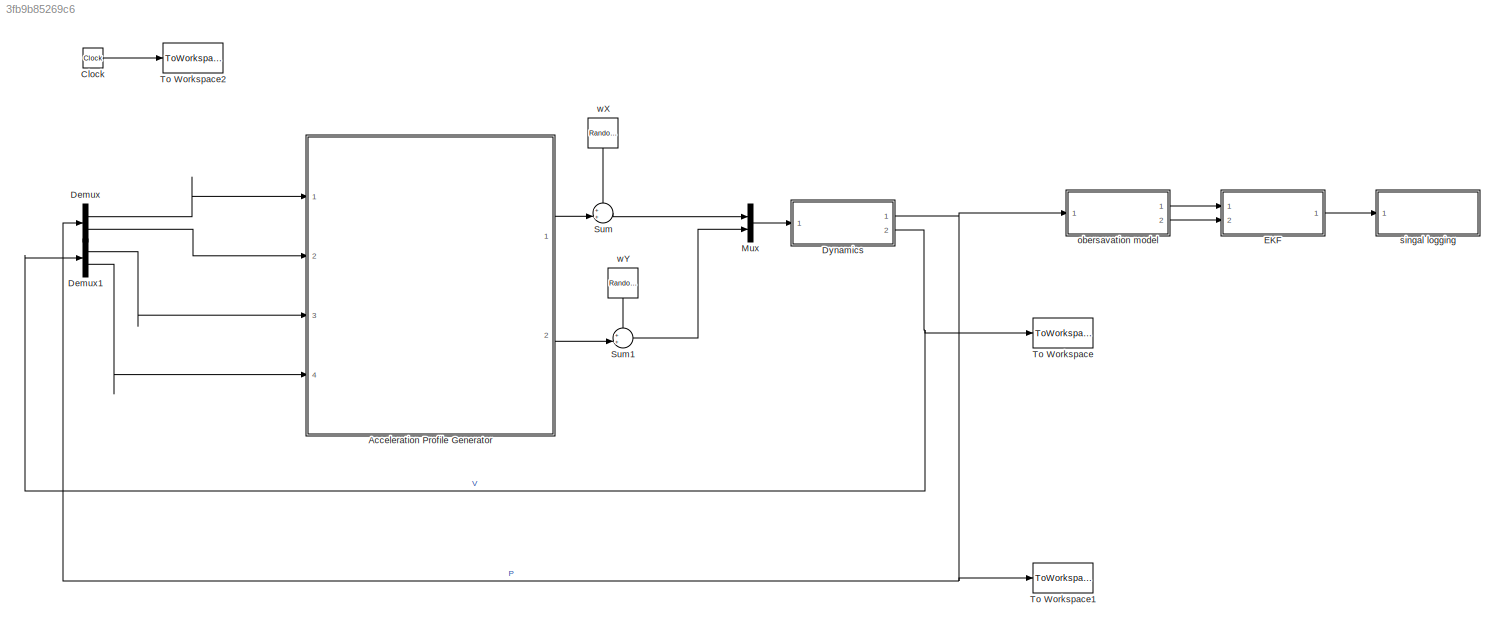
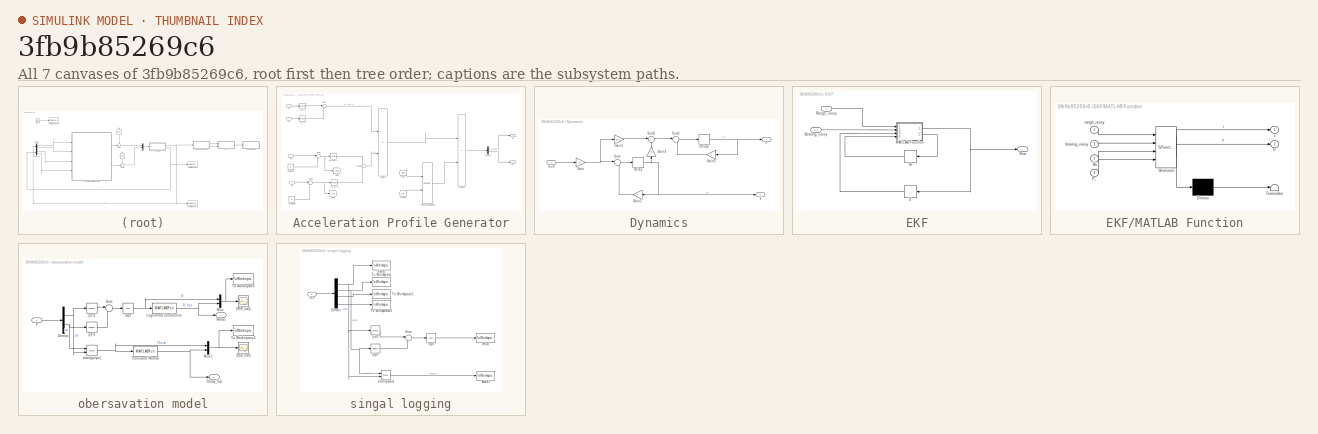
[diagram: thumbnail index - all 7 canvases of the model, root first then tree order]
MODEL slx_3fb9b85269c6
KIND model
CONFIG AbsTol = auto
CONFIG EnableMultiTasking = off
CONFIG FixedStep = Ts
CONFIG MaxStep = auto
CONFIG MinStep = auto
CONFIG RelTol = 1e-3
CONFIG SampleTimeConstraint = Unconstrained
CONFIG Solver = FixedStepDiscrete
CONFIG SolverName = FixedStepDiscrete
CONFIG StartTime = 0.0
CONFIG StopTime = TFinal
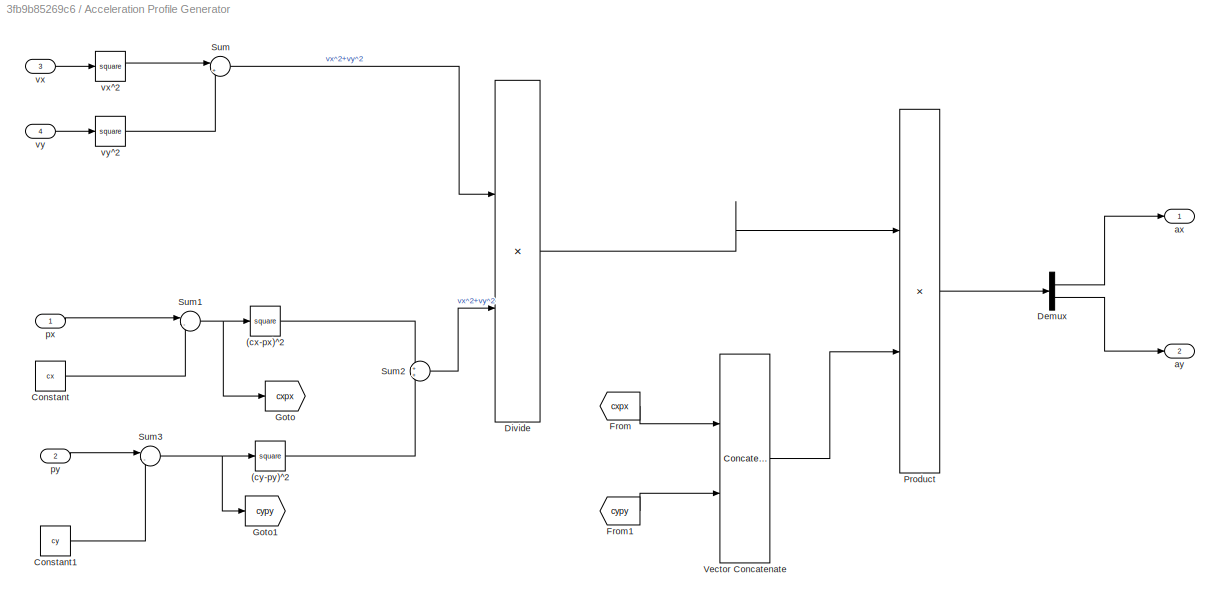
BLOCK [SubSystem] Acceleration Profile Generator
  Ports = [4, 2]
  RequestExecContextInheritance = off
BLOCK [Math] Acceleration Profile Generator/(cx-px)^2
  Operator = square
  Ports = [1, 1]
BLOCK [Math] Acceleration Profile Generator/(cy-py)^2
  Operator = square
  Ports = [1, 1]
BLOCK [Constant] Acceleration Profile Generator/Constant
  Value = cx
BLOCK [Constant] Acceleration Profile Generator/Constant1
  Value = cy
BLOCK [Demux] Acceleration Profile Generator/Demux
  DisplayOption = bar
  Outputs = 2
  Ports = [1, 2]
BLOCK [Product] Acceleration Profile Generator/Divide
  InputSameDT = off
  Inputs = */
  OutDataTypeStr = Inherit: Inherit via internal rule
  Ports = [2, 1]
  RndMeth = Floor
  SaturateOnIntegerOverflow = off
BLOCK [From] Acceleration Profile Generator/From
  GotoTag = cxpx
BLOCK [From] Acceleration Profile Generator/From1
  GotoTag = cypy
BLOCK [Goto] Acceleration Profile Generator/Goto
  GotoTag = cxpx
BLOCK [Goto] Acceleration Profile Generator/Goto1
  GotoTag = cypy
BLOCK [Product] Acceleration Profile Generator/Product
  InputSameDT = off
  OutDataTypeStr = Inherit: Inherit via internal rule
  Ports = [2, 1]
  RndMeth = Floor
  SaturateOnIntegerOverflow = off
BLOCK [Sum] Acceleration Profile Generator/Sum
  IconShape = round
  InputSameDT = off
  Inputs = |++
  OutDataTypeStr = Inherit: Inherit via internal rule
  Ports = [2, 1]
  SaturateOnIntegerOverflow = off
BLOCK [Sum] Acceleration Profile Generator/Sum1
  IconShape = round
  InputSameDT = off
  Inputs = |-+
  OutDataTypeStr = Inherit: Inherit via internal rule
  Ports = [2, 1]
  SaturateOnIntegerOverflow = off
BLOCK [Sum] Acceleration Profile Generator/Sum2
  IconShape = round
  InputSameDT = off
  OutDataTypeStr = Inherit: Inherit via internal rule
  Ports = [2, 1]
  SaturateOnIntegerOverflow = off
BLOCK [Sum] Acceleration Profile Generator/Sum3
  IconShape = round
  InputSameDT = off
  Inputs = |-+
  OutDataTypeStr = Inherit: Inherit via internal rule
  Ports = [2, 1]
  SaturateOnIntegerOverflow = off
BLOCK [Concatenate] Acceleration Profile Generator/Vector Concatenate
  Ports = [2, 1]
BLOCK [Outport] Acceleration Profile Generator/ax
  IconDisplay = Port number
BLOCK [Outport] Acceleration Profile Generator/ay
  IconDisplay = Port number
  Port = 2
BLOCK [Inport] Acceleration Profile Generator/px
  IconDisplay = Port number
BLOCK [Inport] Acceleration Profile Generator/py
  IconDisplay = Port number
  Port = 2
BLOCK [Inport] Acceleration Profile Generator/vx
  IconDisplay = Port number
  Port = 3
BLOCK [Math] Acceleration Profile Generator/vx^2
  Operator = square
  Ports = [1, 1]
BLOCK [Inport] Acceleration Profile Generator/vy
  IconDisplay = Port number
  Port = 4
BLOCK [Math] Acceleration Profile Generator/vy^2
  Operator = square
  Ports = [1, 1]
BLOCK [Clock] Clock
BLOCK [Demux] Demux
  DisplayOption = bar
  Outputs = 2
  Ports = [1, 2]
BLOCK [Demux] Demux1
  DisplayOption = bar
  Outputs = 2
  Ports = [1, 2]
BLOCK [SubSystem] Dynamics
  Ports = [1, 2]
  RequestExecContextInheritance = off
BLOCK [Delay] Dynamics/Delay
  DelayLength = 1
  InitialCondition = V0
  InputPortMap = u0
  Ports = [1, 1]
BLOCK [Delay] Dynamics/Delay1
  DelayLength = 1
  InitialCondition = P0
  InputPortMap = u0
  Ports = [1, 1]
BLOCK [Gain] Dynamics/Gain
  Gain = Ts
  OutDataTypeStr = Inherit: Inherit via internal rule
  ParamDataTypeStr = Inherit: Inherit via internal rule
  SaturateOnIntegerOverflow = off
BLOCK [Gain] Dynamics/Gain1
  Gain = Ts/2
  OutDataTypeStr = Inherit: Inherit via internal rule
  ParamDataTypeStr = Inherit: Inherit via internal rule
  SaturateOnIntegerOverflow = off
BLOCK [Gain] Dynamics/Gain2
  OutDataTypeStr = Inherit: Inherit via internal rule
  ParamDataTypeStr = Inherit: Inherit via internal rule
  SaturateOnIntegerOverflow = off
BLOCK [Gain] Dynamics/Gain3
  OutDataTypeStr = Inherit: Inherit via internal rule
  ParamDataTypeStr = Inherit: Inherit via internal rule
  SaturateOnIntegerOverflow = off
BLOCK [Gain] Dynamics/Gain4
  Gain = Ts
  OutDataTypeStr = Inherit: Inherit via internal rule
  ParamDataTypeStr = Inherit: Inherit via internal rule
  SaturateOnIntegerOverflow = off
BLOCK [Outport] Dynamics/P
  IconDisplay = Port number
BLOCK [Sum] Dynamics/Sum
  IconShape = round
  InputSameDT = off
  Inputs = |++
  OutDataTypeStr = Inherit: Inherit via internal rule
  Ports = [2, 1]
  SaturateOnIntegerOverflow = off
BLOCK [Sum] Dynamics/Sum1
  IconShape = round
  InputSameDT = off
  Inputs = |++
  OutDataTypeStr = Inherit: Inherit via internal rule
  Ports = [2, 1]
  SaturateOnIntegerOverflow = off
BLOCK [Sum] Dynamics/Sum2
  IconShape = round
  InputSameDT = off
  Inputs = |++
  OutDataTypeStr = Inherit: Inherit via internal rule
  Ports = [2, 1]
  SaturateOnIntegerOverflow = off
BLOCK [Outport] Dynamics/V
  IconDisplay = Port number
  Port = 2
BLOCK [Inport] Dynamics/a+w
  IconDisplay = Port number
BLOCK [SubSystem] EKF
  Ports = [2, 1]
  RequestExecContextInheritance = off
BLOCK [Inport] EKF/Bearing_noisy
  IconDisplay = Port number
  Port = 2
BLOCK [Delay] EKF/M
  DelayLength = 1
  InitialCondition = zeros(4,4)
  InputPortMap = u0
  Ports = [1, 1]
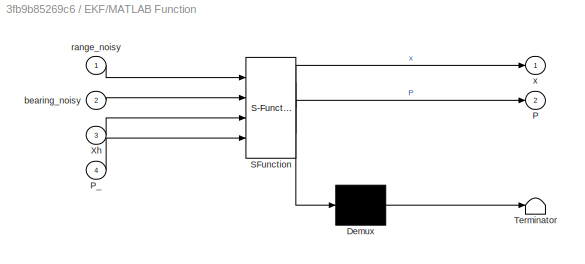
BLOCK [SubSystem] EKF/MATLAB Function
  ErrorFcn = Stateflow.Translate.translate
  PermitHierarchicalResolution = ExplicitOnly
  Ports = [4, 2]
  RequestExecContextInheritance = off
  SFBlockType = MATLAB Function
  TreatAsAtomicUnit = on
BLOCK [Demux] EKF/MATLAB Function/ Demux 
  Outputs = 1
  Ports = [1, 1]
BLOCK [S-Function] EKF/MATLAB Function/ SFunction 
  EnableBusSupport = on
  FunctionName = sf_sfun
  PortCounts = [4 3]
  Ports = [4, 3]
  SFcnIsStateOwnerBlock = off
  SFunctionDeploymentMode = off
  Tag = Stateflow S-Function vechicle_circular_traversing 2
BLOCK [Terminator] EKF/MATLAB Function/ Terminator 
BLOCK [Outport] EKF/MATLAB Function/P
  IconDisplay = Port number
  Port = 2
BLOCK [Inport] EKF/MATLAB Function/P_
  IconDisplay = Port number
  Port = 4
BLOCK [Inport] EKF/MATLAB Function/Xh
  IconDisplay = Port number
  Port = 3
BLOCK [Inport] EKF/MATLAB Function/bearing_noisy
  IconDisplay = Port number
  Port = 2
BLOCK [Inport] EKF/MATLAB Function/range_noisy
  IconDisplay = Port number
BLOCK [Outport] EKF/MATLAB Function/x
  IconDisplay = Port number
BLOCK [Inport] EKF/Range_noisy
  IconDisplay = Port number
BLOCK [Delay] EKF/X
  DelayLength = 1
  InitialCondition = [P0;V0]
  InputPortMap = u0
  Ports = [1, 1]
BLOCK [Outport] EKF/Xhat
  IconDisplay = Port number
BLOCK [Mux] Mux
  DisplayOption = bar
  Inputs = 2
  Ports = [2, 1]
BLOCK [Sum] Sum
  IconShape = round
  InputSameDT = off
  Inputs = ++|
  OutDataTypeStr = Inherit: Inherit via internal rule
  Ports = [2, 1]
  SaturateOnIntegerOverflow = off
BLOCK [Sum] Sum1
  IconShape = round
  InputSameDT = off
  OutDataTypeStr = Inherit: Inherit via internal rule
  Ports = [2, 1]
  SaturateOnIntegerOverflow = off
BLOCK [ToWorkspace] To Workspace
  MaxDataPoints = inf
  Ports = [1]
  SampleTime = -1
  Save2DSignal = 3-D array (concatenate along third dimension)
  VariableName = V
BLOCK [ToWorkspace] To Workspace1
  MaxDataPoints = inf
  Ports = [1]
  SampleTime = -1
  Save2DSignal = 3-D array (concatenate along third dimension)
  VariableName = P
BLOCK [ToWorkspace] To Workspace2
  MaxDataPoints = inf
  Ports = [1]
  SampleTime = -1
  Save2DSignal = 3-D array (concatenate along third dimension)
  VariableName = t
BLOCK [SubSystem] obersavation model
  Ports = [1, 2]
  RequestExecContextInheritance = off
BLOCK [Demux] obersavation model/Demux
  DisplayOption = bar
  Outputs = 2
  Ports = [1, 2]
BLOCK [MATLABFcn] obersavation model/Lognormal Distribution
  MATLABFcn = u*randraw('Lognormal',[0 sigR])
  Ports = [1, 1]
BLOCK [Mux] obersavation model/Mux
  DisplayOption = bar
  Inputs = 2
  Ports = [2, 1]
BLOCK [Mux] obersavation model/Mux1
  DisplayOption = bar
  Inputs = 2
  Ports = [2, 1]
BLOCK [Inport] obersavation model/P
  IconDisplay = Port number
BLOCK [Outport] obersavation model/Rnhat
  IconDisplay = Port number
BLOCK [Sqrt] obersavation model/Sqrt
BLOCK [Sum] obersavation model/Sum
  IconShape = round
  InputSameDT = off
  Inputs = |++
  OutDataTypeStr = Inherit: Inherit via internal rule
  Ports = [2, 1]
  SaturateOnIntegerOverflow = off
BLOCK [Outport] obersavation model/Theta_hat
  IconDisplay = Port number
  Port = 2
BLOCK [ToWorkspace] obersavation model/To Workspace
  MaxDataPoints = inf
  Ports = [1]
  SampleTime = -1
  Save2DSignal = 3-D array (concatenate along third dimension)
  VariableName = Rnhat
BLOCK [ToWorkspace] obersavation model/To Workspace1
  MaxDataPoints = inf
  Ports = [1]
  SampleTime = -1
  Save2DSignal = 3-D array (concatenate along third dimension)
  VariableName = Bnhat
BLOCK [MATLABFcn] obersavation model/Truncated Normal
  MATLABFcn = u+randraw('normaltrunc',[-Z,Z,0 sigB])
  Ports = [1, 1]
BLOCK [Scope] obersavation model/[B;B_hat]
  Floating = off
  NumInputPorts = 1
  Ports = [1]
  ScopeSpecificationString = Simulink.scopes.TimeScopeBlockCfg('CurrentConfiguration', extmgr.ConfigurationSet(extmgr.Configuration('Core','General UI',true),extmgr.Configuration('Core','Source UI',true),extmgr.Configuration('Sources','WiredSimulink',true,'DataLoggingVariableName','ScopeData1'),extmgr.Configuration('Visuals','Time Domain',true,'SerializedDisplays',{struct('MinYLimReal','-0.22679','MaxYLimReal','1.83366','YLab...<+1456ch>
BLOCK [Scope] obersavation model/[R;R_hat]
  Floating = off
  NumInputPorts = 1
  Ports = [1]
  ScopeSpecificationString = Simulink.scopes.TimeScopeBlockCfg('CurrentConfiguration', extmgr.ConfigurationSet(extmgr.Configuration('Core','General UI',true),extmgr.Configuration('Core','Source UI',true),extmgr.Configuration('Sources','WiredSimulink',true),extmgr.Configuration('Visuals','Time Domain',true,'SerializedDisplays',{struct('MinYLimReal','0.41021','MaxYLimReal','6.02131','YLabelReal','','MinYLimMag','0.41021','MaxYL...<+1400ch>
BLOCK [Trigonometry] obersavation model/atan(py//px)
  Operator = atan2
  Ports = [2, 1]
BLOCK [Math] obersavation model/px^2
  Operator = square
  Ports = [1, 1]
BLOCK [Math] obersavation model/py^2
  Operator = square
  Ports = [1, 1]
BLOCK [SubSystem] singal logging
  Ports = [1]
  RequestExecContextInheritance = off
BLOCK [ToWorkspace] singal logging/Azhat
  FixptAsFi = on
  MaxDataPoints = inf
  Ports = [1]
  SampleTime = -1
  Save2DSignal = 3-D array (concatenate along third dimension)
  VariableName = Azhat
BLOCK [Demux] singal logging/Demux
  DisplayOption = bar
  Ports = [1, 4]
BLOCK [Inport] singal logging/In1
  IconDisplay = Port number
BLOCK [ToWorkspace] singal logging/Rhat
  FixptAsFi = on
  MaxDataPoints = inf
  Ports = [1]
  SampleTime = -1
  Save2DSignal = 3-D array (concatenate along third dimension)
  VariableName = Rhat
BLOCK [Sqrt] singal logging/Sqrt
BLOCK [Sum] singal logging/Sum
  IconShape = round
  InputSameDT = off
  OutDataTypeStr = Inherit: Inherit via internal rule
  Ports = [2, 1]
  SaturateOnIntegerOverflow = off
BLOCK [ToWorkspace] singal logging/To Workspace
  FixptAsFi = on
  MaxDataPoints = inf
  Ports = [1]
  SampleTime = -1
  Save2DSignal = 3-D array (concatenate along third dimension)
  VariableName = pyhat
BLOCK [ToWorkspace] singal logging/To Workspace1
  FixptAsFi = on
  MaxDataPoints = inf
  Ports = [1]
  SampleTime = -1
  Save2DSignal = 3-D array (concatenate along third dimension)
  VariableName = vxhat
BLOCK [ToWorkspace] singal logging/To Workspace2
  FixptAsFi = on
  MaxDataPoints = inf
  Ports = [1]
  SampleTime = -1
  Save2DSignal = 3-D array (concatenate along third dimension)
  VariableName = vyhat
BLOCK [Trigonometry] singal logging/atan(py//px)
  Operator = atan2
  Ports = [2, 1]
BLOCK [Math] singal logging/px^2
  Operator = square
  Ports = [1, 1]
BLOCK [ToWorkspace] singal logging/pxhat
  FixptAsFi = on
  MaxDataPoints = inf
  Ports = [1]
  SampleTime = -1
  Save2DSignal = 3-D array (concatenate along third dimension)
  VariableName = pxhat
BLOCK [Math] singal logging/py^2
  Operator = square
  Ports = [1, 1]
BLOCK [RandomNumber] wX
  Mean = muWx
  SampleTime = Ts
  Seed = 2^wx
  Variance = sigWx
BLOCK [RandomNumber] wY
  Mean = muWy
  SampleTime = Ts
  Seed = 2^wy
  Variance = sigWy
LINE Acceleration Profile Generator/(cx-px)^2:1 -> Acceleration Profile Generator/Sum2:1
LINE Acceleration Profile Generator/(cy-py)^2:1 -> Acceleration Profile Generator/Sum2:2
LINE Acceleration Profile Generator/Constant1:1 -> Acceleration Profile Generator/Sum3:2
LINE Acceleration Profile Generator/Constant:1 -> Acceleration Profile Generator/Sum1:2
LINE Acceleration Profile Generator/Demux:1 -> Acceleration Profile Generator/ax:1
LINE Acceleration Profile Generator/Demux:2 -> Acceleration Profile Generator/ay:1
LINE Acceleration Profile Generator/Divide:1 -> Acceleration Profile Generator/Product:1
LINE Acceleration Profile Generator/From1:1 -> Acceleration Profile Generator/Vector Concatenate:2
LINE Acceleration Profile Generator/From:1 -> Acceleration Profile Generator/Vector Concatenate:1
LINE Acceleration Profile Generator/Product:1 -> Acceleration Profile Generator/Demux:1
NET Acceleration Profile Generator/Sum1:1 -> Acceleration Profile Generator/(cx-px)^2:1, Acceleration Profile Generator/Goto:1
LINE Acceleration Profile Generator/Sum2:1 -> Acceleration Profile Generator/Divide:2
NET Acceleration Profile Generator/Sum3:1 -> Acceleration Profile Generator/(cy-py)^2:1, Acceleration Profile Generator/Goto1:1
LINE Acceleration Profile Generator/Sum:1 -> Acceleration Profile Generator/Divide:1
LINE Acceleration Profile Generator/Vector Concatenate:1 -> Acceleration Profile Generator/Product:2
LINE Acceleration Profile Generator/px:1 -> Acceleration Profile Generator/Sum1:1
LINE Acceleration Profile Generator/py:1 -> Acceleration Profile Generator/Sum3:1
LINE Acceleration Profile Generator/vx:1 -> Acceleration Profile Generator/vx^2:1
LINE Acceleration Profile Generator/vx^2:1 -> Acceleration Profile Generator/Sum:1
LINE Acceleration Profile Generator/vy:1 -> Acceleration Profile Generator/vy^2:1
LINE Acceleration Profile Generator/vy^2:1 -> Acceleration Profile Generator/Sum:2
LINE Acceleration Profile Generator:1 -> Sum:2
LINE Acceleration Profile Generator:2 -> Sum1:2
LINE Clock:1 -> To Workspace2:1
LINE Demux1:1 -> Acceleration Profile Generator:3
LINE Demux1:2 -> Acceleration Profile Generator:4
LINE Demux:1 -> Acceleration Profile Generator:1
LINE Demux:2 -> Acceleration Profile Generator:2
NET Dynamics/Delay1:1 -> Dynamics/Gain3:1, Dynamics/P:1
NET Dynamics/Delay:1 -> Dynamics/Gain2:1, Dynamics/Gain4:1, Dynamics/V:1
LINE Dynamics/Gain1:1 -> Dynamics/Sum2:1
LINE Dynamics/Gain2:1 -> Dynamics/Sum:2
LINE Dynamics/Gain3:1 -> Dynamics/Sum1:2
LINE Dynamics/Gain4:1 -> Dynamics/Sum2:2
NET Dynamics/Gain:1 -> Dynamics/Gain1:1, Dynamics/Sum:1
LINE Dynamics/Sum1:1 -> Dynamics/Delay1:1
LINE Dynamics/Sum2:1 -> Dynamics/Sum1:1
LINE Dynamics/Sum:1 -> Dynamics/Delay:1
LINE Dynamics/a+w:1 -> Dynamics/Gain:1
NET Dynamics:1 -> Demux:1, To Workspace1:1, obersavation model:1
NET Dynamics:2 -> Demux1:1, To Workspace:1
LINE EKF/Bearing_noisy:1 -> EKF/MATLAB Function:2
LINE EKF/M:1 -> EKF/MATLAB Function:4
NET EKF/MATLAB Function:1 -> EKF/X:1, EKF/Xhat:1
LINE EKF/MATLAB Function:2 -> EKF/M:1
LINE EKF/Range_noisy:1 -> EKF/MATLAB Function:1
LINE EKF/X:1 -> EKF/MATLAB Function:3
LINE EKF:1 -> singal logging:1
LINE Mux:1 -> Dynamics:1
LINE Sum1:1 -> Mux:2
LINE Sum:1 -> Mux:1
NET obersavation model/Demux:1 -> obersavation model/atan(py//px):2, obersavation model/px^2:1
NET obersavation model/Demux:2 -> obersavation model/atan(py//px):1, obersavation model/py^2:1
NET obersavation model/Lognormal Distribution:1 -> obersavation model/Mux:2, obersavation model/Rnhat:1
NET obersavation model/Mux1:1 -> obersavation model/To Workspace1:1, obersavation model/[B;B_hat]:1
NET obersavation model/Mux:1 -> obersavation model/To Workspace:1, obersavation model/[R;R_hat]:1
LINE obersavation model/P:1 -> obersavation model/Demux:1
NET obersavation model/Sqrt:1 -> obersavation model/Lognormal Distribution:1, obersavation model/Mux:1
LINE obersavation model/Sum:1 -> obersavation model/Sqrt:1
NET obersavation model/Truncated Normal:1 -> obersavation model/Mux1:2, obersavation model/Theta_hat:1
NET obersavation model/atan(py//px):1 -> obersavation model/Mux1:1, obersavation model/Truncated Normal:1
LINE obersavation model/px^2:1 -> obersavation model/Sum:1
LINE obersavation model/py^2:1 -> obersavation model/Sum:2
LINE obersavation model:1 -> EKF:1
LINE obersavation model:2 -> EKF:2
NET singal logging/Demux:1 -> singal logging/atan(py//px):2, singal logging/px^2:1, singal logging/pxhat:1
NET singal logging/Demux:2 -> singal logging/To Workspace:1, singal logging/atan(py//px):1, singal logging/py^2:1
LINE singal logging/Demux:3 -> singal logging/To Workspace1:1
LINE singal logging/Demux:4 -> singal logging/To Workspace2:1
LINE singal logging/In1:1 -> singal logging/Demux:1
LINE singal logging/Sqrt:1 -> singal logging/Rhat:1
LINE singal logging/Sum:1 -> singal logging/Sqrt:1
LINE singal logging/atan(py//px):1 -> singal logging/Azhat:1
LINE singal logging/px^2:1 -> singal logging/Sum:1
LINE singal logging/py^2:1 -> singal logging/Sum:2
LINE wX:1 -> Sum:1
LINE wY:1 -> Sum1:1
note: NET lines group one-source signal fan-out (src -> all destinations, sorted); 1:1 wires keep LINE
CHART EKF/MATLAB Function states=1 transitions=1
  STATE_LABEL 'eML_blk_kernel()'
  STATE_LABEL 'SCRIPT:\nfunction [x,P] = EKF(range_noisy,bearing_noisy,Xh,P_)\n% 샘플링 주기\nTs = 1/100;\n\nsigWx = 1e-7;\nsigWy = 1e-7;\n\nsigR = 1e-1;\nsigB = 1e-1;\n\nQ = [sigWx 0;0 sigWy];\nR = [sigB 0;0 sigB];\n% 원의 중심점\ncx = 2;\ncy = 2;\n\npx = Xh(1);\npy = Xh(2);\nvx = Xh(3);\nvy = Xh(4);\n% 자코비안 변환\nA= Ajacob(cx,cy,px,py,vx,vy,Ts);\nL = Lmat(Ts);\n\nPos = [px;py];\nVel = [vx;vy];\n\nax = ((vx^2 + vy^2)*(cx - px))/((cx-px)^2 + (cy-py)^2...<+1543ch>'
